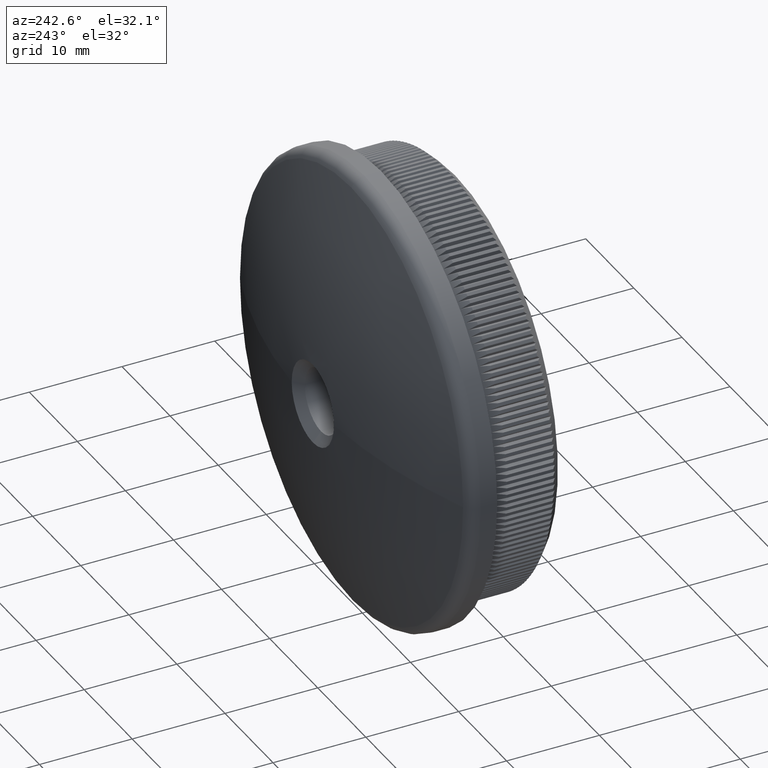
[diagram: clean part render]
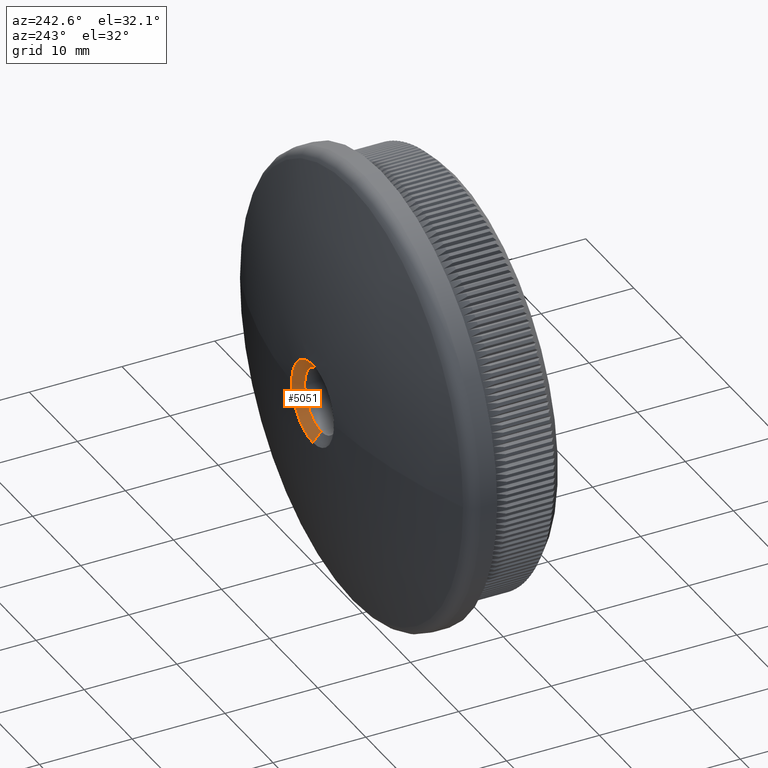
[diagram: same view with one face highlighted and labeled with its STEP entity id]
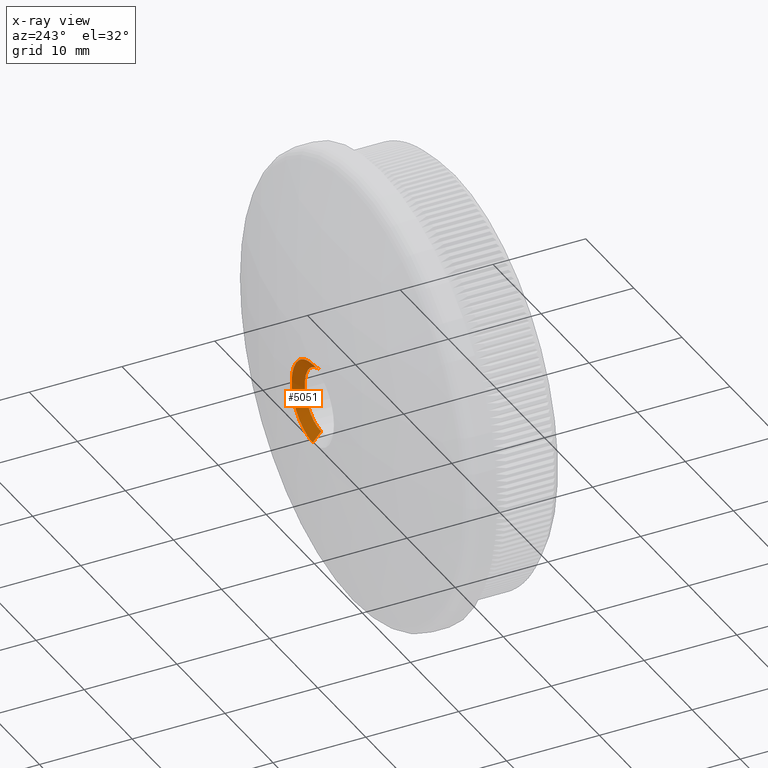
[diagram: x-ray of the same camera — body ghosted, the highlighted face saturated]
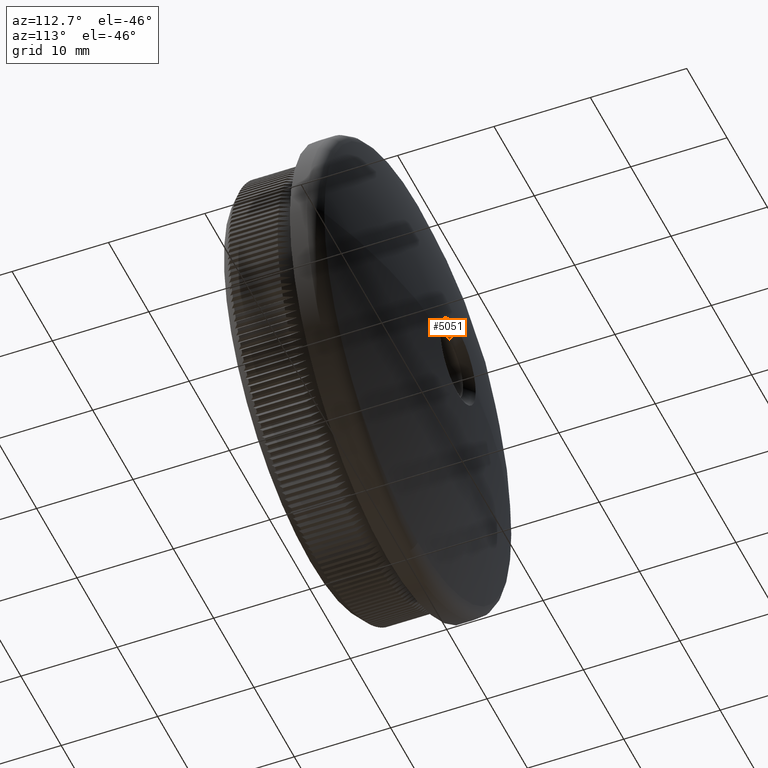
[diagram: same view with one face highlighted and labeled with its STEP entity id]
A machine part, auxiliary view. The second image highlights one B-rep face of the part: STEP entity #5051.
The next image is the same camera in x-ray: the body ghosted, the highlighted face saturated — about 0% of this face is hidden behind the body in this view.
A second angle (auxiliary view) of the same face is appended — the face is thin or edge-on in the first view.
In plain terms, the highlighted conical surface has half-angle 48.027 deg.
Its self-contained STEP definition (entity closure, byte-faithful):
#395 = CARTESIAN_POINT ( 'NONE',  ( 4.390565330205774300, 15.35014724972939800, 0.0000000000000000000 ) ) ;
#1427 = EDGE_LOOP ( 'NONE', ( #9102, #9449, #25007, #17962, #18280 ) ) ;
#2123 = CARTESIAN_POINT ( 'NONE',  ( 0.0000000000000000000, 14.45906987097148100, 0.0000000000000000000 ) ) ;
#4124 = CIRCLE ( 'NONE', #28357, 4.390565330205774300 ) ;
#4290 = VERTEX_POINT ( 'NONE', #23401 ) ;
#4585 = VERTEX_POINT ( 'NONE', #32503 ) ;
#5051 = ADVANCED_FACE ( 'NONE', ( #12232 ), #26096, .F. ) ;
#5384 = DIRECTION ( 'NONE',  ( 0.0000000000000000000, 0.0000000000000000000, 1.000000000000000000 ) ) ;
#5418 = CARTESIAN_POINT ( 'NONE',  ( 0.0000000000000000000, 14.45906987097148100, -3.399999999999995500 ) ) ;
#6036 = EDGE_CURVE ( 'NONE', #11681, #20876, #31165, .T. ) ;
#7391 = DIRECTION ( 'NONE',  ( 0.0000000000000000000, 0.0000000000000000000, -1.000000000000000000 ) ) ;
#7987 = EDGE_CURVE ( 'NONE', #11681, #4290, #9358, .T. ) ;
#8005 = CIRCLE ( 'NONE', #13375, 4.390565330205774300 ) ;
#9102 = ORIENTED_EDGE ( 'NONE', *, *, #23801, .F. ) ;
#9358 = LINE ( 'NONE', #14163, #29929 ) ;
#9449 = ORIENTED_EDGE ( 'NONE', *, *, #6036, .F. ) ;
#9695 = LINE ( 'NONE', #13742, #15985 ) ;
#10182 = EDGE_CURVE ( 'NONE', #21886, #4290, #4124, .T. ) ;
#11681 = VERTEX_POINT ( 'NONE', #31079 ) ;
#12229 = DIRECTION ( 'NONE',  ( 0.0000000000000000000, 0.0000000000000000000, 1.000000000000000000 ) ) ;
#12232 = FACE_OUTER_BOUND ( 'NONE', #1427, .T. ) ;
#13375 = AXIS2_PLACEMENT_3D ( 'NONE', #22313, #27174, #27616 ) ;
#13742 = CARTESIAN_POINT ( 'NONE',  ( 4.163799117100995600E-016, 14.45906987097148100, -3.399999999999995500 ) ) ;
#13818 = AXIS2_PLACEMENT_3D ( 'NONE', #25665, #28304, #5384 ) ;
#14163 = CARTESIAN_POINT ( 'NONE',  ( 0.0000000000000000000, 14.45906987097148100, 3.399999999999995500 ) ) ;
#14698 = AXIS2_PLACEMENT_3D ( 'NONE', #2123, #22336, #12229 ) ;
#15985 = VECTOR ( 'NONE', #21081, 1000.000000000000000 ) ;
#16393 = EDGE_CURVE ( 'NONE', #4585, #21886, #8005, .T. ) ;
#17463 = CARTESIAN_POINT ( 'NONE',  ( 0.0000000000000000000, 15.35014724972939800, 0.0000000000000000000 ) ) ;
#17962 = ORIENTED_EDGE ( 'NONE', *, *, #10182, .F. ) ;
#18280 = ORIENTED_EDGE ( 'NONE', *, *, #16393, .F. ) ;
#20876 = VERTEX_POINT ( 'NONE', #5418 ) ;
#21081 = DIRECTION ( 'NONE',  ( 9.104699426056070700E-017, 0.6687858199039512500, -0.7434551278291109400 ) ) ;
#21886 = VERTEX_POINT ( 'NONE', #395 ) ;
#22313 = CARTESIAN_POINT ( 'NONE',  ( 0.0000000000000000000, 15.35014724972939800, 0.0000000000000000000 ) ) ;
#22336 = DIRECTION ( 'NONE',  ( 0.0000000000000000000, 1.000000000000000000, 0.0000000000000000000 ) ) ;
#23401 = CARTESIAN_POINT ( 'NONE',  ( 0.0000000000000000000, 15.35014724972939800, 4.390565330205769900 ) ) ;
#23801 = EDGE_CURVE ( 'NONE', #20876, #4585, #9695, .T. ) ;
#25007 = ORIENTED_EDGE ( 'NONE', *, *, #7987, .T. ) ;
#25665 = CARTESIAN_POINT ( 'NONE',  ( 0.0000000000000000000, 14.45906987097148100, 0.0000000000000000000 ) ) ;
#26096 = CONICAL_SURFACE ( 'NONE', #13818, 3.399999999999995500, 0.8382219000445301200 ) ;
#27174 = DIRECTION ( 'NONE',  ( -0.0000000000000000000, -1.000000000000000000, -0.0000000000000000000 ) ) ;
#27616 = DIRECTION ( 'NONE',  ( 0.0000000000000000000, 0.0000000000000000000, -1.000000000000000000 ) ) ;
#28304 = DIRECTION ( 'NONE',  ( 0.0000000000000000000, 1.000000000000000000, 0.0000000000000000000 ) ) ;
#28357 = AXIS2_PLACEMENT_3D ( 'NONE', #17463, #30181, #7391 ) ;
#29929 = VECTOR ( 'NONE', #30658, 1000.000000000000000 ) ;
#30181 = DIRECTION ( 'NONE',  ( -0.0000000000000000000, -1.000000000000000000, -0.0000000000000000000 ) ) ;
#30658 = DIRECTION ( 'NONE',  ( 0.0000000000000000000, 0.6687858199039512500, 0.7434551278291109400 ) ) ;
#31079 = CARTESIAN_POINT ( 'NONE',  ( 4.163799117100995600E-016, 14.45906987097148100, 3.399999999999995500 ) ) ;
#31165 = CIRCLE ( 'NONE', #14698, 3.399999999999995500 ) ;
#32503 = CARTESIAN_POINT ( 'NONE',  ( 5.376891778083837900E-016, 15.35014724972939800, -4.390565330205769900 ) ) ;